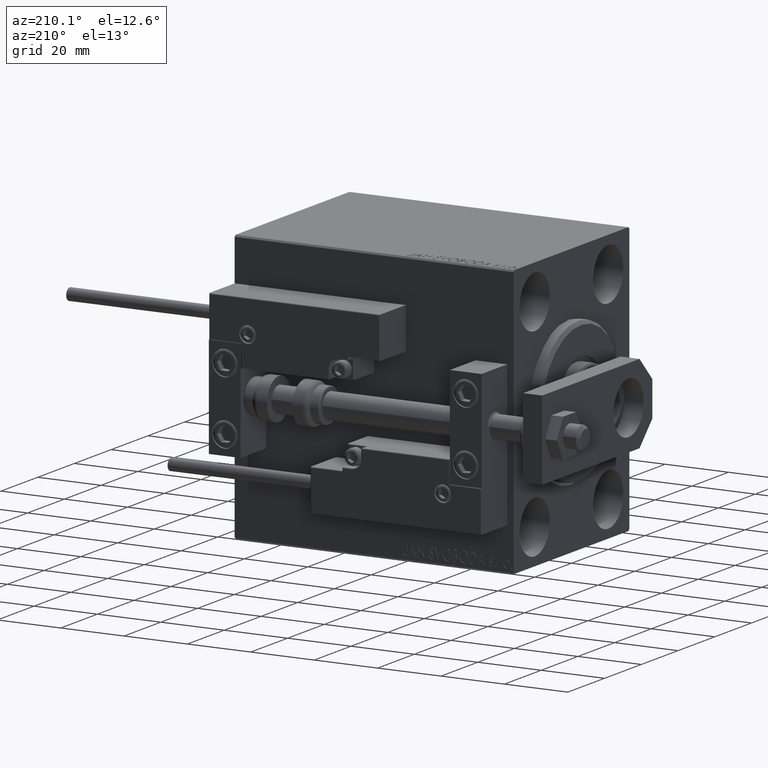
[diagram: clean part render]
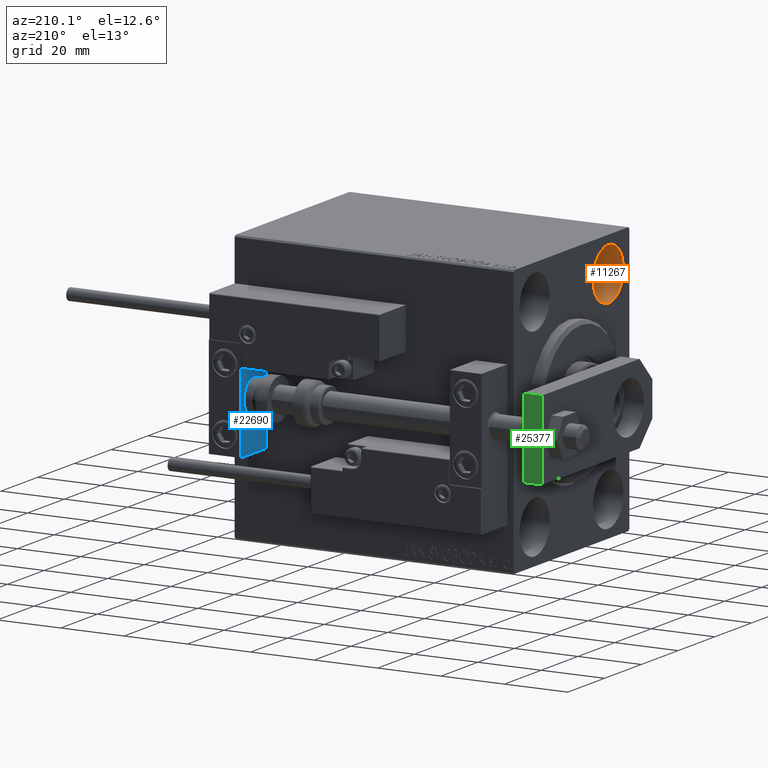
[diagram: same view with three faces highlighted in distinct colors, each labeled with its STEP entity id]
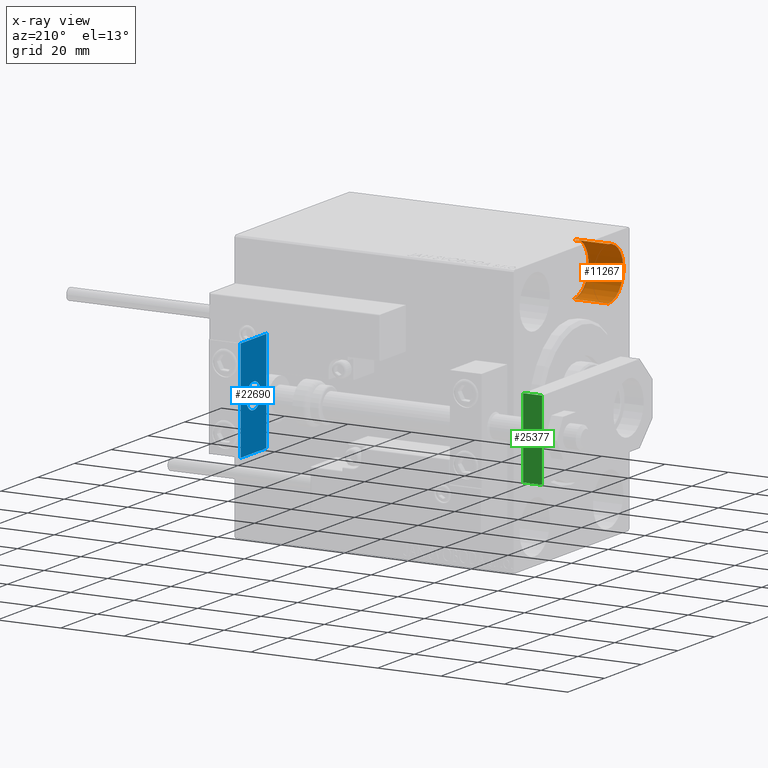
[diagram: x-ray of the same camera — body ghosted, the three highlighted faces saturated]
A machine part, auxiliary view with three faces highlighted in distinct colors.
The next image is the same camera in x-ray (body ghosted, the three faces saturated) — at least one of them is partly hidden behind the body in this view.
Their STEP definitions:

[orange] entity #11267 — the highlighted cylindrical surface (edge-blend (fillet) strip) has radius 8.25 mm, axis along (-1, -0, -0).
#1903 = ORIENTED_EDGE ( 'NONE', *, *, #49776, .T. ) ;
#4002 = CARTESIAN_POINT ( 'NONE',  ( 11.00000000000000000, -19.99999999999999645, 31.50000000000000000 ) ) ;
#6116 = DIRECTION ( 'NONE',  ( 0.000000000000000000, 0.000000000000000000, 1.000000000000000000 ) ) ;
#7027 = AXIS2_PLACEMENT_3D ( 'NONE', #4002, #7806, #30850 ) ;
#7275 = VERTEX_POINT ( 'NONE', #34334 ) ;
#7806 = DIRECTION ( 'NONE',  ( -1.000000000000000000, -0.000000000000000000, -0.000000000000000000 ) ) ;
#7936 = EDGE_LOOP ( 'NONE', ( #47991, #1903, #36352, #29990 ) ) ;
#8926 = AXIS2_PLACEMENT_3D ( 'NONE', #29418, #45106, #6116 ) ;
#9577 = VERTEX_POINT ( 'NONE', #28093 ) ;
#11267 = ADVANCED_FACE ( 'NONE', ( #15402 ), #49851, .F. ) ;
#12492 = CIRCLE ( 'NONE', #15704, 8.249999999999992895 ) ;
#13947 = VERTEX_POINT ( 'NONE', #31218 ) ;
#15402 = FACE_OUTER_BOUND ( 'NONE', #7936, .T. ) ;
#15704 = AXIS2_PLACEMENT_3D ( 'NONE', #39196, #31111, #34670 ) ;
#16489 = CARTESIAN_POINT ( 'NONE',  ( 11.00000000000000000, -19.99999999999999645, 39.74999999999999289 ) ) ;
#17220 = LINE ( 'NONE', #32683, #38197 ) ;
#18811 = CARTESIAN_POINT ( 'NONE',  ( 11.00000000000000000, -19.99999999999999645, 23.25000000000000355 ) ) ;
#19260 = EDGE_CURVE ( 'NONE', #20330, #9577, #17220, .T. ) ;
#20330 = VERTEX_POINT ( 'NONE', #16489 ) ;
#24462 = EDGE_CURVE ( 'NONE', #13947, #9577, #12492, .T. ) ;
#28093 = CARTESIAN_POINT ( 'NONE',  ( 0.000000000000000000, -19.99999999999999645, 39.74999999999999289 ) ) ;
#28887 = DIRECTION ( 'NONE',  ( -1.000000000000000000, -0.000000000000000000, -0.000000000000000000 ) ) ;
#29418 = CARTESIAN_POINT ( 'NONE',  ( 11.00000000000000000, -19.99999999999999645, 31.50000000000000000 ) ) ;
#29990 = ORIENTED_EDGE ( 'NONE', *, *, #19260, .F. ) ;
#30767 = CIRCLE ( 'NONE', #8926, 8.249999999999992895 ) ;
#30850 = DIRECTION ( 'NONE',  ( 0.000000000000000000, 0.000000000000000000, 1.000000000000000000 ) ) ;
#31111 = DIRECTION ( 'NONE',  ( -1.000000000000000000, 0.000000000000000000, 0.000000000000000000 ) ) ;
#31218 = CARTESIAN_POINT ( 'NONE',  ( 0.000000000000000000, -19.99999999999999645, 23.25000000000000355 ) ) ;
#32683 = CARTESIAN_POINT ( 'NONE',  ( 11.00000000000000000, -19.99999999999999645, 39.74999999999999289 ) ) ;
#34334 = CARTESIAN_POINT ( 'NONE',  ( 11.00000000000000000, -19.99999999999999645, 23.25000000000000355 ) ) ;
#34670 = DIRECTION ( 'NONE',  ( 0.000000000000000000, 0.000000000000000000, 1.000000000000000000 ) ) ;
#35244 = DIRECTION ( 'NONE',  ( -1.000000000000000000, -0.000000000000000000, -0.000000000000000000 ) ) ;
#36352 = ORIENTED_EDGE ( 'NONE', *, *, #24462, .T. ) ;
#38197 = VECTOR ( 'NONE', #28887, 1000.000000000000000 ) ;
#38795 = LINE ( 'NONE', #18811, #45958 ) ;
#39196 = CARTESIAN_POINT ( 'NONE',  ( 0.000000000000000000, -19.99999999999999645, 31.50000000000000000 ) ) ;
#42556 = EDGE_CURVE ( 'NONE', #7275, #20330, #30767, .T. ) ;
#45106 = DIRECTION ( 'NONE',  ( -1.000000000000000000, 0.000000000000000000, 0.000000000000000000 ) ) ;
#45958 = VECTOR ( 'NONE', #35244, 1000.000000000000000 ) ;
#47991 = ORIENTED_EDGE ( 'NONE', *, *, #42556, .F. ) ;
#49776 = EDGE_CURVE ( 'NONE', #7275, #13947, #38795, .T. ) ;
#49851 = CYLINDRICAL_SURFACE ( 'NONE', #7027, 8.249999999999992895 ) ;

[blue] entity #22690 — the highlighted planar face has unit normal (-1, 0, 0).
#348 = CARTESIAN_POINT ( 'NONE',  ( 0.000000000000000000, 0.000000000000000000, 0.000000000000000000 ) ) ;
#1158 = VERTEX_POINT ( 'NONE', #8934 ) ;
#1536 = AXIS2_PLACEMENT_3D ( 'NONE', #43194, #35351, #12071 ) ;
#2226 = EDGE_LOOP ( 'NONE', ( #43870, #20096, #9226, #10187 ) ) ;
#3910 = DIRECTION ( 'NONE',  ( -1.000000000000000000, 0.000000000000000000, -0.000000000000000000 ) ) ;
#4346 = DIRECTION ( 'NONE',  ( -1.000000000000000000, -0.000000000000000000, -0.000000000000000000 ) ) ;
#6269 = LINE ( 'NONE', #26031, #20850 ) ;
#7333 = LINE ( 'NONE', #29877, #41482 ) ;
#7556 = DIRECTION ( 'NONE',  ( 0.000000000000000000, 0.000000000000000000, -1.000000000000000000 ) ) ;
#7684 = CARTESIAN_POINT ( 'NONE',  ( 0.000000000000000000, 7.000000000000000000, -16.00000000000000711 ) ) ;
#8934 = CARTESIAN_POINT ( 'NONE',  ( 0.000000000000000000, 4.898587196589412829E-16, -4.000000000000000000 ) ) ;
#9226 = ORIENTED_EDGE ( 'NONE', *, *, #14220, .T. ) ;
#10187 = ORIENTED_EDGE ( 'NONE', *, *, #38403, .T. ) ;
#11509 = PLANE ( 'NONE',  #14083 ) ;
#12071 = DIRECTION ( 'NONE',  ( 0.000000000000000000, 0.000000000000000000, 1.000000000000000000 ) ) ;
#12452 = DIRECTION ( 'NONE',  ( 0.000000000000000000, 0.000000000000000000, 1.000000000000000000 ) ) ;
#14083 = AXIS2_PLACEMENT_3D ( 'NONE', #348, #3910, #31249 ) ;
#14220 = EDGE_CURVE ( 'NONE', #15227, #14853, #49848, .T. ) ;
#14853 = VERTEX_POINT ( 'NONE', #7684 ) ;
#15157 = CARTESIAN_POINT ( 'NONE',  ( 0.000000000000000000, 7.000000000000000000, 15.99999999999999289 ) ) ;
#15227 = VERTEX_POINT ( 'NONE', #26052 ) ;
#19106 = FACE_BOUND ( 'NONE', #41407, .T. ) ;
#20096 = ORIENTED_EDGE ( 'NONE', *, *, #44908, .F. ) ;
#20325 = ORIENTED_EDGE ( 'NONE', *, *, #37768, .F. ) ;
#20667 = CARTESIAN_POINT ( 'NONE',  ( 0.000000000000000000, 7.000000000000000000, -16.00000000000000711 ) ) ;
#20850 = VECTOR ( 'NONE', #26275, 1000.000000000000000 ) ;
#21145 = EDGE_CURVE ( 'NONE', #26005, #22409, #7333, .T. ) ;
#21477 = CARTESIAN_POINT ( 'NONE',  ( 0.000000000000000000, 0.000000000000000000, 4.000000000000000000 ) ) ;
#22409 = VERTEX_POINT ( 'NONE', #32310 ) ;
#22550 = CIRCLE ( 'NONE', #1536, 4.000000000000000000 ) ;
#22690 = ADVANCED_FACE ( 'NONE', ( #19106, #27696 ), #11509, .T. ) ;
#23610 = CARTESIAN_POINT ( 'NONE',  ( 0.000000000000000000, 0.000000000000000000, 0.000000000000000000 ) ) ;
#26005 = VERTEX_POINT ( 'NONE', #47181 ) ;
#26031 = CARTESIAN_POINT ( 'NONE',  ( 0.000000000000000000, 7.000000000000000000, 15.99999999999999289 ) ) ;
#26052 = CARTESIAN_POINT ( 'NONE',  ( 0.000000000000000000, 7.000000000000000000, 15.99999999999999289 ) ) ;
#26275 = DIRECTION ( 'NONE',  ( 0.000000000000000000, -1.000000000000000000, 0.000000000000000000 ) ) ;
#27696 = FACE_OUTER_BOUND ( 'NONE', #2226, .T. ) ;
#28272 = EDGE_CURVE ( 'NONE', #46010, #1158, #29477, .T. ) ;
#29045 = VECTOR ( 'NONE', #7556, 1000.000000000000000 ) ;
#29477 = CIRCLE ( 'NONE', #45662, 4.000000000000000000 ) ;
#29877 = CARTESIAN_POINT ( 'NONE',  ( 0.000000000000000000, -7.000000000000000000, 15.99999999999999289 ) ) ;
#31249 = DIRECTION ( 'NONE',  ( -0.000000000000000000, 0.000000000000000000, 1.000000000000000000 ) ) ;
#31624 = ORIENTED_EDGE ( 'NONE', *, *, #28272, .F. ) ;
#32310 = CARTESIAN_POINT ( 'NONE',  ( 0.000000000000000000, -7.000000000000000000, -16.00000000000000711 ) ) ;
#35351 = DIRECTION ( 'NONE',  ( -1.000000000000000000, -0.000000000000000000, -0.000000000000000000 ) ) ;
#37105 = VECTOR ( 'NONE', #48514, 1000.000000000000000 ) ;
#37213 = DIRECTION ( 'NONE',  ( 0.000000000000000000, 0.000000000000000000, -1.000000000000000000 ) ) ;
#37768 = EDGE_CURVE ( 'NONE', #1158, #46010, #22550, .T. ) ;
#38403 = EDGE_CURVE ( 'NONE', #14853, #22409, #44199, .T. ) ;
#41407 = EDGE_LOOP ( 'NONE', ( #31624, #20325 ) ) ;
#41482 = VECTOR ( 'NONE', #37213, 1000.000000000000000 ) ;
#43194 = CARTESIAN_POINT ( 'NONE',  ( 0.000000000000000000, 0.000000000000000000, 0.000000000000000000 ) ) ;
#43870 = ORIENTED_EDGE ( 'NONE', *, *, #21145, .F. ) ;
#44199 = LINE ( 'NONE', #20667, #37105 ) ;
#44908 = EDGE_CURVE ( 'NONE', #15227, #26005, #6269, .T. ) ;
#45662 = AXIS2_PLACEMENT_3D ( 'NONE', #23610, #4346, #12452 ) ;
#46010 = VERTEX_POINT ( 'NONE', #21477 ) ;
#47181 = CARTESIAN_POINT ( 'NONE',  ( 0.000000000000000000, -7.000000000000000000, 15.99999999999999289 ) ) ;
#48514 = DIRECTION ( 'NONE',  ( 0.000000000000000000, -1.000000000000000000, 0.000000000000000000 ) ) ;
#49848 = LINE ( 'NONE', #15157, #29045 ) ;

[green] entity #25377 — the highlighted planar face has unit normal (0, -1, 0).
#76 = CARTESIAN_POINT ( 'NONE',  ( 12.50000000000000355, 60.00000000000000000, 0.000000000000000000 ) ) ;
#794 = EDGE_LOOP ( 'NONE', ( #35001, #37028, #27891, #22214 ) ) ;
#1273 = VERTEX_POINT ( 'NONE', #16769 ) ;
#1726 = DIRECTION ( 'NONE',  ( 0.000000000000000000, -1.000000000000000000, 0.000000000000000000 ) ) ;
#2658 = LINE ( 'NONE', #3169, #10407 ) ;
#2910 = DIRECTION ( 'NONE',  ( -1.000000000000000000, 0.000000000000000000, 0.000000000000000000 ) ) ;
#3169 = CARTESIAN_POINT ( 'NONE',  ( 12.50000000000000355, 60.00000000000000000, 6.000000000000000000 ) ) ;
#3243 = VERTEX_POINT ( 'NONE', #35787 ) ;
#3788 = VECTOR ( 'NONE', #47565, 1000.000000000000000 ) ;
#4416 = AXIS2_PLACEMENT_3D ( 'NONE', #16663, #1726, #25282 ) ;
#7784 = DIRECTION ( 'NONE',  ( -1.000000000000000000, 0.000000000000000000, 0.000000000000000000 ) ) ;
#10407 = VECTOR ( 'NONE', #2910, 1000.000000000000000 ) ;
#13123 = FACE_OUTER_BOUND ( 'NONE', #794, .T. ) ;
#14459 = DIRECTION ( 'NONE',  ( -0.000000000000000000, -0.000000000000000000, -1.000000000000000000 ) ) ;
#14949 = CARTESIAN_POINT ( 'NONE',  ( 12.50000000000000355, 60.00000000000000000, 6.000000000000000000 ) ) ;
#15833 = VERTEX_POINT ( 'NONE', #76 ) ;
#16663 = CARTESIAN_POINT ( 'NONE',  ( 12.50000000000000355, 60.00000000000000000, 6.000000000000000000 ) ) ;
#16769 = CARTESIAN_POINT ( 'NONE',  ( -12.49999999999999822, 60.00000000000000000, 0.000000000000000000 ) ) ;
#16994 = CARTESIAN_POINT ( 'NONE',  ( 12.50000000000000355, 60.00000000000000000, 6.000000000000000000 ) ) ;
#18681 = CARTESIAN_POINT ( 'NONE',  ( 12.50000000000000355, 60.00000000000000000, 0.000000000000000000 ) ) ;
#22214 = ORIENTED_EDGE ( 'NONE', *, *, #27478, .T. ) ;
#25282 = DIRECTION ( 'NONE',  ( 0.000000000000000000, -0.000000000000000000, -1.000000000000000000 ) ) ;
#25377 = ADVANCED_FACE ( 'NONE', ( #13123 ), #36910, .F. ) ;
#27478 = EDGE_CURVE ( 'NONE', #49885, #15833, #37483, .T. ) ;
#27891 = ORIENTED_EDGE ( 'NONE', *, *, #36921, .F. ) ;
#31433 = VECTOR ( 'NONE', #7784, 1000.000000000000000 ) ;
#31864 = VECTOR ( 'NONE', #14459, 1000.000000000000000 ) ;
#34130 = LINE ( 'NONE', #18681, #31433 ) ;
#35001 = ORIENTED_EDGE ( 'NONE', *, *, #38119, .T. ) ;
#35420 = CARTESIAN_POINT ( 'NONE',  ( -12.49999999999999822, 60.00000000000000000, 6.000000000000000000 ) ) ;
#35787 = CARTESIAN_POINT ( 'NONE',  ( -12.49999999999999822, 60.00000000000000000, 6.000000000000000000 ) ) ;
#35905 = LINE ( 'NONE', #35420, #3788 ) ;
#36910 = PLANE ( 'NONE',  #4416 ) ;
#36921 = EDGE_CURVE ( 'NONE', #49885, #3243, #2658, .T. ) ;
#37028 = ORIENTED_EDGE ( 'NONE', *, *, #45890, .F. ) ;
#37483 = LINE ( 'NONE', #14949, #31864 ) ;
#38119 = EDGE_CURVE ( 'NONE', #15833, #1273, #34130, .T. ) ;
#45890 = EDGE_CURVE ( 'NONE', #3243, #1273, #35905, .T. ) ;
#47565 = DIRECTION ( 'NONE',  ( -0.000000000000000000, -0.000000000000000000, -1.000000000000000000 ) ) ;
#49885 = VERTEX_POINT ( 'NONE', #16994 ) ;